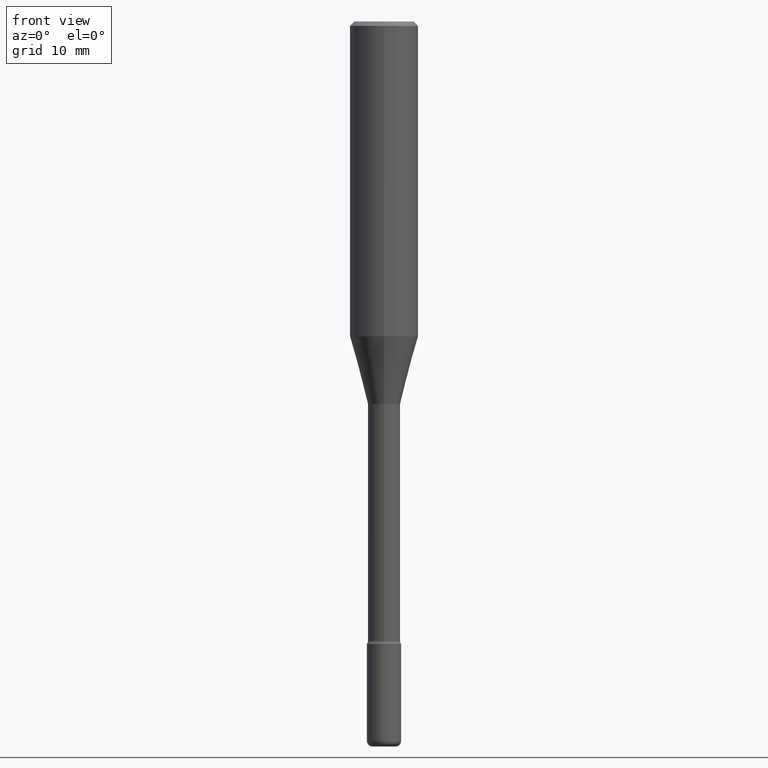
[diagram: clean part render]
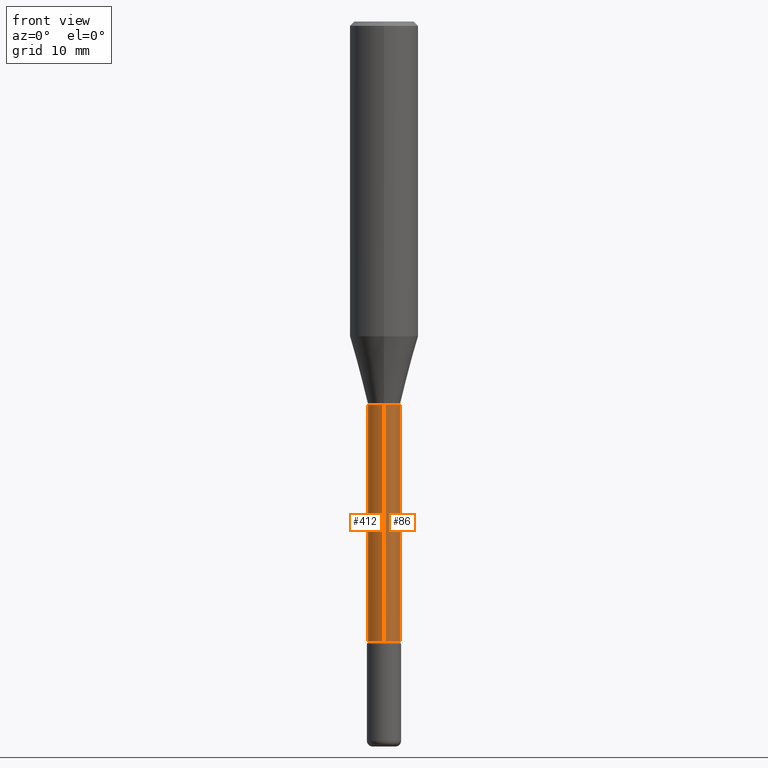
[diagram: same view with one multi-face feature highlighted, each face labeled with its STEP entity id]
A machine part, front view. The highlighted faces form ONE feature: a constant-radius fillet chain: 2 tangent blend faces with common blend radius 1.4097 mm. The faces share edges in the B-rep.
Their STEP definitions:
[1] entity #412 (Cylinder):
#4 = EDGE_CURVE ( 'NONE', #140, #515, #500, .T. ) ;
#44 = CARTESIAN_POINT ( 'NONE',  ( 3.943512183469081661E-16, 0.05549999999999540023, -1.320874787463811373 ) ) ;
#53 = CARTESIAN_POINT ( 'NONE',  ( -3.875544286115880904E-16, -0.05550000000000004929, 6.718628713841425539E-16 ) ) ;
#65 = AXIS2_PLACEMENT_3D ( 'NONE', #511, #168, #302 ) ;
#71 = ORIENTED_EDGE ( 'NONE', *, *, #272, .F. ) ;
#78 = VECTOR ( 'NONE', #144, 39.37007874015748143 ) ;
#84 = LINE ( 'NONE', #180, #478 ) ;
#95 = ORIENTED_EDGE ( 'NONE', *, *, #4, .F. ) ;
#98 = EDGE_CURVE ( 'NONE', #187, #528, #454, .T. ) ;
#101 = DIRECTION ( 'NONE',  ( -6.982962677686265922E-15, -1.000000000000000000, 3.491702207079214016E-15 ) ) ;
#107 = DIRECTION ( 'NONE',  ( -2.445314574720221452E-29, 3.491702207079214016E-15, 1.000000000000000000 ) ) ;
#140 = VERTEX_POINT ( 'NONE', #44 ) ;
#144 = DIRECTION ( 'NONE',  ( -2.445314574720221172E-29, 3.491702207079214016E-15, 1.000000000000000000 ) ) ;
#163 = ORIENTED_EDGE ( 'NONE', *, *, #98, .T. ) ;
#164 = AXIS2_PLACEMENT_3D ( 'NONE', #190, #107, #101 ) ;
#168 = DIRECTION ( 'NONE',  ( -2.445314574720221452E-29, 3.491702207079214016E-15, 1.000000000000000000 ) ) ;
#180 = CARTESIAN_POINT ( 'NONE',  ( 3.943512183468558548E-16, 0.05550000000000004929, 2.842839263983495232E-16 ) ) ;
#187 = VERTEX_POINT ( 'NONE', #259 ) ;
#190 = CARTESIAN_POINT ( 'NONE',  ( -1.169113584055446105E-44, 1.669184350826100908E-30, 4.780733988912460139E-16 ) ) ;
#228 = LINE ( 'NONE', #53, #78 ) ;
#256 = DIRECTION ( 'NONE',  ( -2.445314574720221172E-29, 3.491702207079214016E-15, 1.000000000000000000 ) ) ;
#257 = ORIENTED_EDGE ( 'NONE', *, *, #365, .T. ) ;
#259 = CARTESIAN_POINT ( 'NONE',  ( 4.069633519066500838E-16, 0.05549999999999261774, -2.136009927760847749 ) ) ;
#272 = EDGE_CURVE ( 'NONE', #187, #140, #84, .T. ) ;
#278 = CYLINDRICAL_SURFACE ( 'NONE', #164, 0.05550000000000004929 ) ;
#302 = DIRECTION ( 'NONE',  ( -6.982962677686265922E-15, -1.000000000000000000, 4.922248637232899302E-15 ) ) ;
#316 = FACE_OUTER_BOUND ( 'NONE', #463, .T. ) ;
#365 = EDGE_CURVE ( 'NONE', #528, #515, #228, .T. ) ;
#412 = ADVANCED_FACE ( 'NONE', ( #316 ), #278, .T. ) ;
#418 = CARTESIAN_POINT ( 'NONE',  ( 3.229954369165731744E-29, -4.612101410662676179E-15, -1.320874787463810929 ) ) ;
#425 = CARTESIAN_POINT ( 'NONE',  ( -3.875544286115360749E-16, -0.05550000000000754330, -2.136009927760847305 ) ) ;
#454 = CIRCLE ( 'NONE', #65, 0.05550000000000008399 ) ;
#458 = DIRECTION ( 'NONE',  ( -6.982962677686265922E-15, -1.000000000000000000, 4.922248637232905613E-15 ) ) ;
#463 = EDGE_LOOP ( 'NONE', ( #71, #163, #257, #95 ) ) ;
#469 = DIRECTION ( 'NONE',  ( -2.445314574720221452E-29, 3.491702207079214016E-15, 1.000000000000000000 ) ) ;
#478 = VECTOR ( 'NONE', #256, 39.37007874015748143 ) ;
#487 = AXIS2_PLACEMENT_3D ( 'NONE', #418, #469, #458 ) ;
#500 = CIRCLE ( 'NONE', #487, 0.05550000000000001460 ) ;
#510 = CARTESIAN_POINT ( 'NONE',  ( -3.875544286115555499E-16, -0.05550000000000462202, -1.320874787463810707 ) ) ;
#511 = CARTESIAN_POINT ( 'NONE',  ( 5.223216208100687058E-29, -7.458310579105662270E-15, -2.136009927760847305 ) ) ;
#515 = VERTEX_POINT ( 'NONE', #510 ) ;
#528 = VERTEX_POINT ( 'NONE', #425 ) ;
[2] entity #86 (Cylinder):
#12 = CIRCLE ( 'NONE', #356, 0.05550000000000008399 ) ;
#23 = DIRECTION ( 'NONE',  ( -6.982962677686265922E-15, -1.000000000000000000, 3.491702207079214016E-15 ) ) ;
#44 = CARTESIAN_POINT ( 'NONE',  ( 3.943512183469081661E-16, 0.05549999999999540023, -1.320874787463811373 ) ) ;
#53 = CARTESIAN_POINT ( 'NONE',  ( -3.875544286115880904E-16, -0.05550000000000004929, 6.718628713841425539E-16 ) ) ;
#62 = EDGE_CURVE ( 'NONE', #515, #140, #508, .T. ) ;
#66 = CYLINDRICAL_SURFACE ( 'NONE', #567, 0.05550000000000004929 ) ;
#78 = VECTOR ( 'NONE', #144, 39.37007874015748143 ) ;
#84 = LINE ( 'NONE', #180, #478 ) ;
#86 = ADVANCED_FACE ( 'NONE', ( #461 ), #66, .T. ) ;
#92 = DIRECTION ( 'NONE',  ( -2.445314574720221452E-29, 3.491702207079214016E-15, 1.000000000000000000 ) ) ;
#130 = EDGE_CURVE ( 'NONE', #528, #187, #12, .T. ) ;
#135 = AXIS2_PLACEMENT_3D ( 'NONE', #201, #335, #205 ) ;
#140 = VERTEX_POINT ( 'NONE', #44 ) ;
#144 = DIRECTION ( 'NONE',  ( -2.445314574720221172E-29, 3.491702207079214016E-15, 1.000000000000000000 ) ) ;
#180 = CARTESIAN_POINT ( 'NONE',  ( 3.943512183468558548E-16, 0.05550000000000004929, 2.842839263983495232E-16 ) ) ;
#182 = EDGE_LOOP ( 'NONE', ( #368, #209, #390, #293 ) ) ;
#187 = VERTEX_POINT ( 'NONE', #259 ) ;
#201 = CARTESIAN_POINT ( 'NONE',  ( 3.229954369165731744E-29, -4.612101410662676179E-15, -1.320874787463810929 ) ) ;
#205 = DIRECTION ( 'NONE',  ( -6.982962677686265922E-15, -1.000000000000000000, 4.922248637232905613E-15 ) ) ;
#209 = ORIENTED_EDGE ( 'NONE', *, *, #272, .T. ) ;
#228 = LINE ( 'NONE', #53, #78 ) ;
#241 = CARTESIAN_POINT ( 'NONE',  ( -1.169113584055446105E-44, 1.669184350826100908E-30, 4.780733988912460139E-16 ) ) ;
#256 = DIRECTION ( 'NONE',  ( -2.445314574720221172E-29, 3.491702207079214016E-15, 1.000000000000000000 ) ) ;
#259 = CARTESIAN_POINT ( 'NONE',  ( 4.069633519066500838E-16, 0.05549999999999261774, -2.136009927760847749 ) ) ;
#272 = EDGE_CURVE ( 'NONE', #187, #140, #84, .T. ) ;
#293 = ORIENTED_EDGE ( 'NONE', *, *, #365, .F. ) ;
#331 = DIRECTION ( 'NONE',  ( -2.445314574720221452E-29, 3.491702207079214016E-15, 1.000000000000000000 ) ) ;
#335 = DIRECTION ( 'NONE',  ( -2.445314574720221452E-29, 3.491702207079214016E-15, 1.000000000000000000 ) ) ;
#356 = AXIS2_PLACEMENT_3D ( 'NONE', #442, #92, #522 ) ;
#365 = EDGE_CURVE ( 'NONE', #528, #515, #228, .T. ) ;
#368 = ORIENTED_EDGE ( 'NONE', *, *, #130, .T. ) ;
#390 = ORIENTED_EDGE ( 'NONE', *, *, #62, .F. ) ;
#425 = CARTESIAN_POINT ( 'NONE',  ( -3.875544286115360749E-16, -0.05550000000000754330, -2.136009927760847305 ) ) ;
#442 = CARTESIAN_POINT ( 'NONE',  ( 5.223216208100687058E-29, -7.458310579105662270E-15, -2.136009927760847305 ) ) ;
#461 = FACE_OUTER_BOUND ( 'NONE', #182, .T. ) ;
#478 = VECTOR ( 'NONE', #256, 39.37007874015748143 ) ;
#508 = CIRCLE ( 'NONE', #135, 0.05550000000000001460 ) ;
#510 = CARTESIAN_POINT ( 'NONE',  ( -3.875544286115555499E-16, -0.05550000000000462202, -1.320874787463810707 ) ) ;
#515 = VERTEX_POINT ( 'NONE', #510 ) ;
#522 = DIRECTION ( 'NONE',  ( -6.982962677686265922E-15, -1.000000000000000000, 4.922248637232899302E-15 ) ) ;
#528 = VERTEX_POINT ( 'NONE', #425 ) ;
#567 = AXIS2_PLACEMENT_3D ( 'NONE', #241, #331, #23 ) ;